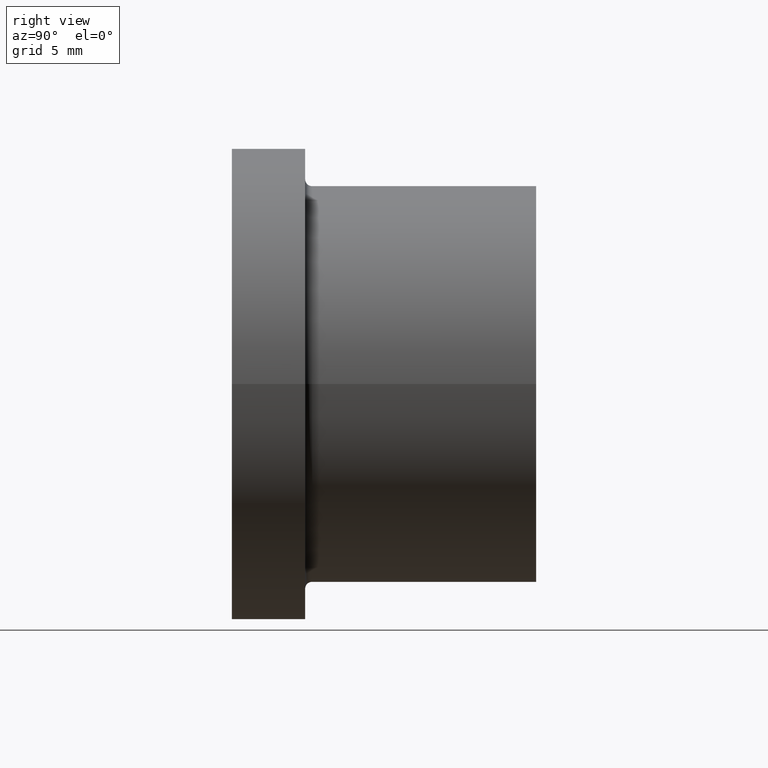
[diagram: clean part render]
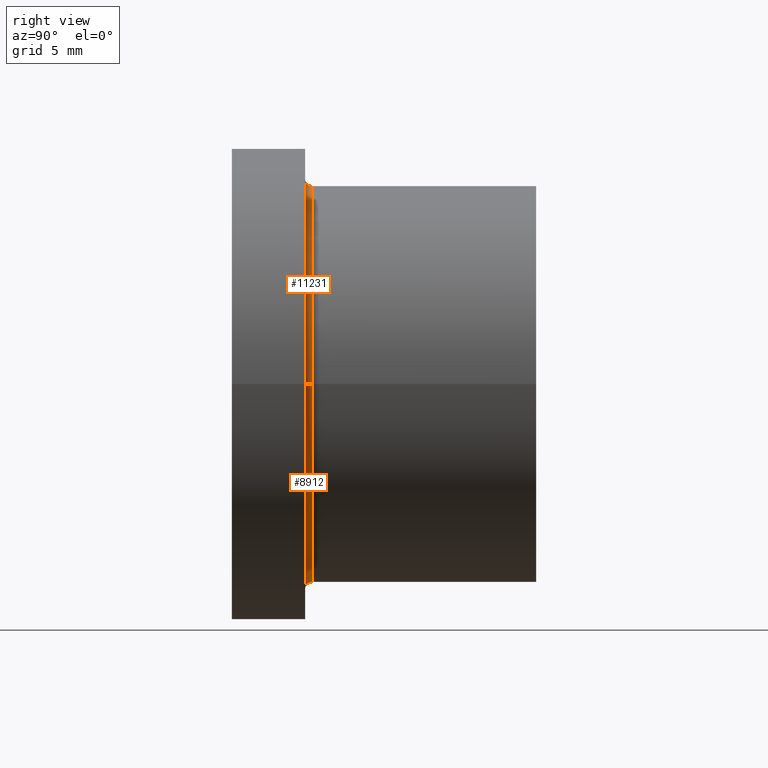
[diagram: same view with one multi-face feature highlighted, each face labeled with its STEP entity id]
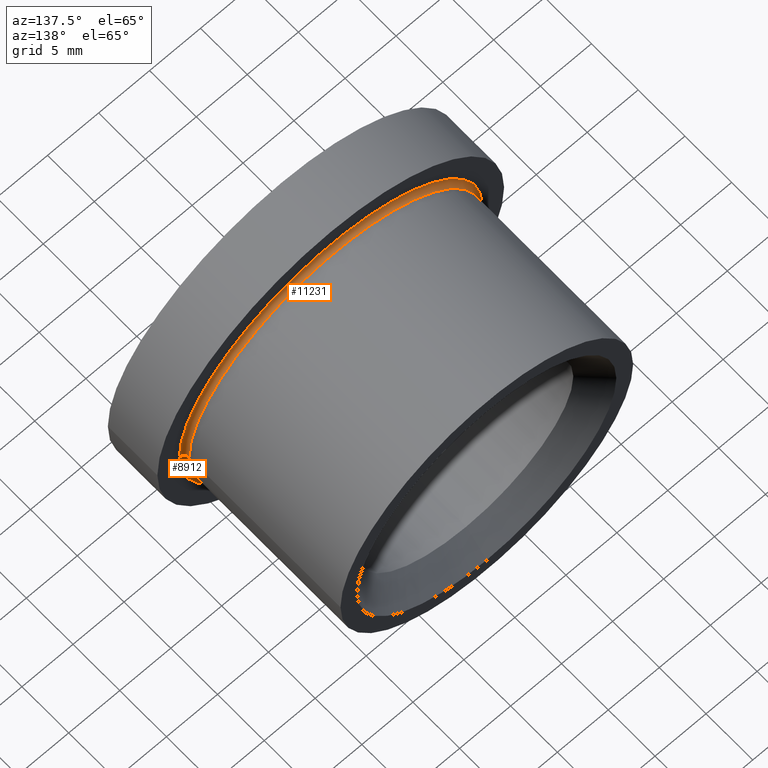
[diagram: same view with one multi-face feature highlighted, each face labeled with its STEP entity id]
A machine part, right view. The highlighted faces form ONE feature: a constant-radius fillet chain: 2 tangent blend faces with common blend radius 0.5 mm. The faces share edges in the B-rep.
A second angle (auxiliary view) of the same feature is appended — it is thin or edge-on in the first view.
Their STEP definitions:
[1] entity #11231 (Torus):
#519 = CARTESIAN_POINT ( 'NONE',  ( 14.84999999999999800, 5.299999999999998900, 0.0000000000000000000 ) ) ;
#1144 = ORIENTED_EDGE ( 'NONE', *, *, #8700, .T. ) ;
#1525 = DIRECTION ( 'NONE',  ( -1.000000000000000000, 0.0000000000000000000, 0.0000000000000000000 ) ) ;
#1676 = AXIS2_PLACEMENT_3D ( 'NONE', #2581, #9245, #3526 ) ;
#1919 = ORIENTED_EDGE ( 'NONE', *, *, #9701, .F. ) ;
#2216 = ORIENTED_EDGE ( 'NONE', *, *, #12194, .F. ) ;
#2581 = CARTESIAN_POINT ( 'NONE',  ( -8.071535721653002500E-017, 5.799999999999999800, 0.0000000000000000000 ) ) ;
#2586 = VERTEX_POINT ( 'NONE', #2894 ) ;
#2734 = CARTESIAN_POINT ( 'NONE',  ( -14.84999999999999800, 5.299999999999998900, 1.818600496733819600E-015 ) ) ;
#2804 = CIRCLE ( 'NONE', #9913, 14.84999999999999800 ) ;
#2894 = CARTESIAN_POINT ( 'NONE',  ( 14.34999999999999800, 5.799999999999999800, 1.757368156776451600E-015 ) ) ;
#2992 = VERTEX_POINT ( 'NONE', #2734 ) ;
#3358 = CARTESIAN_POINT ( 'NONE',  ( 14.84999999999999800, 5.799999999999999800, 0.0000000000000000000 ) ) ;
#3526 = DIRECTION ( 'NONE',  ( 1.000000000000000000, 0.0000000000000000000, 0.0000000000000000000 ) ) ;
#3965 = FACE_OUTER_BOUND ( 'NONE', #5976, .T. ) ;
#4511 = CIRCLE ( 'NONE', #10997, 0.5000000000000004400 ) ;
#4529 = CARTESIAN_POINT ( 'NONE',  ( -8.071535721653002500E-017, 5.799999999999999800, 0.0000000000000000000 ) ) ;
#4679 = DIRECTION ( 'NONE',  ( 1.224646799147353200E-016, 1.704272480297563800E-033, 1.000000000000000000 ) ) ;
#5542 = DIRECTION ( 'NONE',  ( 1.000000000000000000, 1.391644089940172800E-017, 0.0000000000000000000 ) ) ;
#5769 = DIRECTION ( 'NONE',  ( 1.000000000000000000, 0.0000000000000000000, 0.0000000000000000000 ) ) ;
#5814 = CARTESIAN_POINT ( 'NONE',  ( -14.34999999999999800, 5.799999999999999800, 0.0000000000000000000 ) ) ;
#5949 = VERTEX_POINT ( 'NONE', #519 ) ;
#5976 = EDGE_LOOP ( 'NONE', ( #2216, #1919, #1144, #9213 ) ) ;
#6419 = VERTEX_POINT ( 'NONE', #5814 ) ;
#6635 = EDGE_CURVE ( 'NONE', #6419, #2586, #11489, .T. ) ;
#6746 = DIRECTION ( 'NONE',  ( 1.391644089940172800E-017, -1.000000000000000000, 0.0000000000000000000 ) ) ;
#7310 = AXIS2_PLACEMENT_3D ( 'NONE', #4529, #10331, #5542 ) ;
#8007 = TOROIDAL_SURFACE ( 'NONE', #7310, 14.84999999999999800, 0.5000000000000000000 ) ;
#8102 = CIRCLE ( 'NONE', #10374, 0.5000000000000004400 ) ;
#8700 = EDGE_CURVE ( 'NONE', #5949, #2586, #8102, .T. ) ;
#9213 = ORIENTED_EDGE ( 'NONE', *, *, #6635, .F. ) ;
#9245 = DIRECTION ( 'NONE',  ( -1.391644089940172800E-017, 1.000000000000000000, -0.0000000000000000000 ) ) ;
#9562 = CARTESIAN_POINT ( 'NONE',  ( -14.84999999999999800, 5.799999999999999800, 1.818600496733819600E-015 ) ) ;
#9701 = EDGE_CURVE ( 'NONE', #5949, #2992, #2804, .T. ) ;
#9913 = AXIS2_PLACEMENT_3D ( 'NONE', #11506, #6746, #5769 ) ;
#10331 = DIRECTION ( 'NONE',  ( 1.391644089940172800E-017, -1.000000000000000000, 0.0000000000000000000 ) ) ;
#10374 = AXIS2_PLACEMENT_3D ( 'NONE', #3358, #10988, #1525 ) ;
#10481 = DIRECTION ( 'NONE',  ( 1.000000000000000000, 0.0000000000000000000, -1.224646799147349500E-016 ) ) ;
#10988 = DIRECTION ( 'NONE',  ( 0.0000000000000000000, 0.0000000000000000000, -1.000000000000000000 ) ) ;
#10997 = AXIS2_PLACEMENT_3D ( 'NONE', #9562, #4679, #10481 ) ;
#11231 = ADVANCED_FACE ( 'NONE', ( #3965 ), #8007, .F. ) ;
#11489 = CIRCLE ( 'NONE', #1676, 14.34999999999999800 ) ;
#11506 = CARTESIAN_POINT ( 'NONE',  ( -7.375713676682914900E-017, 5.299999999999998900, 0.0000000000000000000 ) ) ;
#12194 = EDGE_CURVE ( 'NONE', #2992, #6419, #4511, .T. ) ;
[2] entity #8912 (Torus):
#284 = DIRECTION ( 'NONE',  ( 1.391644089940172800E-017, -1.000000000000000000, 0.0000000000000000000 ) ) ;
#519 = CARTESIAN_POINT ( 'NONE',  ( 14.84999999999999800, 5.299999999999998900, 0.0000000000000000000 ) ) ;
#1362 = AXIS2_PLACEMENT_3D ( 'NONE', #1410, #8080, #10998 ) ;
#1410 = CARTESIAN_POINT ( 'NONE',  ( -8.071535721653002500E-017, 5.799999999999999800, 0.0000000000000000000 ) ) ;
#1525 = DIRECTION ( 'NONE',  ( -1.000000000000000000, 0.0000000000000000000, 0.0000000000000000000 ) ) ;
#2166 = ORIENTED_EDGE ( 'NONE', *, *, #8700, .F. ) ;
#2586 = VERTEX_POINT ( 'NONE', #2894 ) ;
#2734 = CARTESIAN_POINT ( 'NONE',  ( -14.84999999999999800, 5.299999999999998900, 1.818600496733819600E-015 ) ) ;
#2894 = CARTESIAN_POINT ( 'NONE',  ( 14.34999999999999800, 5.799999999999999800, 1.757368156776451600E-015 ) ) ;
#2992 = VERTEX_POINT ( 'NONE', #2734 ) ;
#3022 = CARTESIAN_POINT ( 'NONE',  ( -8.071535721653002500E-017, 5.799999999999999800, 0.0000000000000000000 ) ) ;
#3206 = CIRCLE ( 'NONE', #5231, 14.84999999999999800 ) ;
#3358 = CARTESIAN_POINT ( 'NONE',  ( 14.84999999999999800, 5.799999999999999800, 0.0000000000000000000 ) ) ;
#4000 = DIRECTION ( 'NONE',  ( 1.000000000000000000, 1.391644089940172800E-017, 0.0000000000000000000 ) ) ;
#4511 = CIRCLE ( 'NONE', #10997, 0.5000000000000004400 ) ;
#4616 = ORIENTED_EDGE ( 'NONE', *, *, #8630, .F. ) ;
#4679 = DIRECTION ( 'NONE',  ( 1.224646799147353200E-016, 1.704272480297563800E-033, 1.000000000000000000 ) ) ;
#4947 = TOROIDAL_SURFACE ( 'NONE', #6292, 14.84999999999999800, 0.5000000000000000000 ) ;
#5231 = AXIS2_PLACEMENT_3D ( 'NONE', #6063, #284, #8831 ) ;
#5814 = CARTESIAN_POINT ( 'NONE',  ( -14.34999999999999800, 5.799999999999999800, 0.0000000000000000000 ) ) ;
#5872 = DIRECTION ( 'NONE',  ( 1.391644089940172800E-017, -1.000000000000000000, 0.0000000000000000000 ) ) ;
#5949 = VERTEX_POINT ( 'NONE', #519 ) ;
#6063 = CARTESIAN_POINT ( 'NONE',  ( -7.375713676682914900E-017, 5.299999999999998900, 0.0000000000000000000 ) ) ;
#6292 = AXIS2_PLACEMENT_3D ( 'NONE', #3022, #5872, #4000 ) ;
#6419 = VERTEX_POINT ( 'NONE', #5814 ) ;
#6814 = CIRCLE ( 'NONE', #1362, 14.34999999999999800 ) ;
#7498 = FACE_OUTER_BOUND ( 'NONE', #7932, .T. ) ;
#7932 = EDGE_LOOP ( 'NONE', ( #4616, #8060, #8982, #2166 ) ) ;
#8060 = ORIENTED_EDGE ( 'NONE', *, *, #12194, .T. ) ;
#8080 = DIRECTION ( 'NONE',  ( -1.391644089940172800E-017, 1.000000000000000000, -0.0000000000000000000 ) ) ;
#8102 = CIRCLE ( 'NONE', #10374, 0.5000000000000004400 ) ;
#8630 = EDGE_CURVE ( 'NONE', #2992, #5949, #3206, .T. ) ;
#8700 = EDGE_CURVE ( 'NONE', #5949, #2586, #8102, .T. ) ;
#8831 = DIRECTION ( 'NONE',  ( 1.000000000000000000, 0.0000000000000000000, 0.0000000000000000000 ) ) ;
#8912 = ADVANCED_FACE ( 'NONE', ( #7498 ), #4947, .F. ) ;
#8982 = ORIENTED_EDGE ( 'NONE', *, *, #10949, .F. ) ;
#9562 = CARTESIAN_POINT ( 'NONE',  ( -14.84999999999999800, 5.799999999999999800, 1.818600496733819600E-015 ) ) ;
#10374 = AXIS2_PLACEMENT_3D ( 'NONE', #3358, #10988, #1525 ) ;
#10481 = DIRECTION ( 'NONE',  ( 1.000000000000000000, 0.0000000000000000000, -1.224646799147349500E-016 ) ) ;
#10949 = EDGE_CURVE ( 'NONE', #2586, #6419, #6814, .T. ) ;
#10988 = DIRECTION ( 'NONE',  ( 0.0000000000000000000, 0.0000000000000000000, -1.000000000000000000 ) ) ;
#10997 = AXIS2_PLACEMENT_3D ( 'NONE', #9562, #4679, #10481 ) ;
#10998 = DIRECTION ( 'NONE',  ( 1.000000000000000000, 0.0000000000000000000, 0.0000000000000000000 ) ) ;
#12194 = EDGE_CURVE ( 'NONE', #2992, #6419, #4511, .T. ) ;